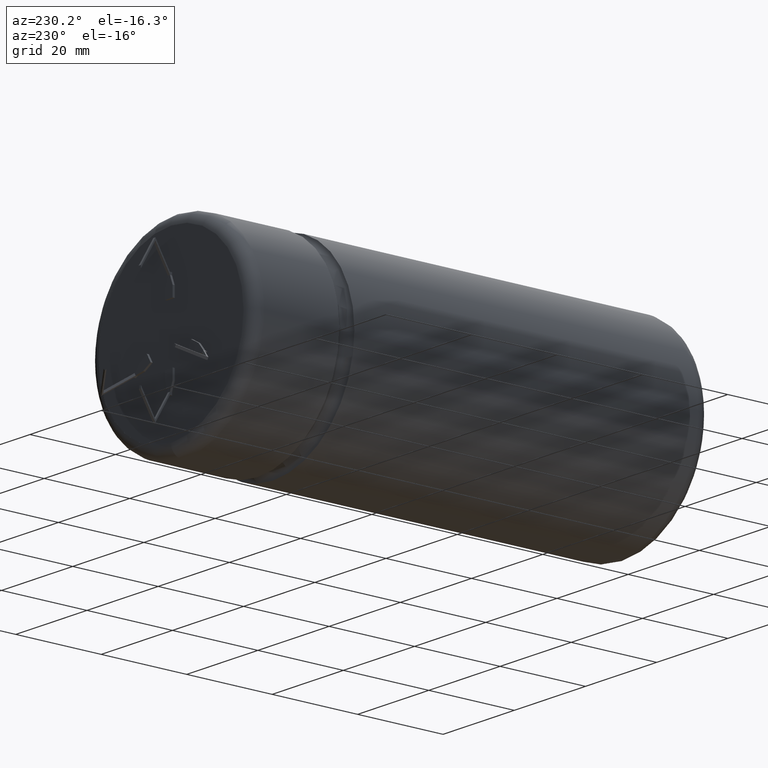
[diagram: clean part render]
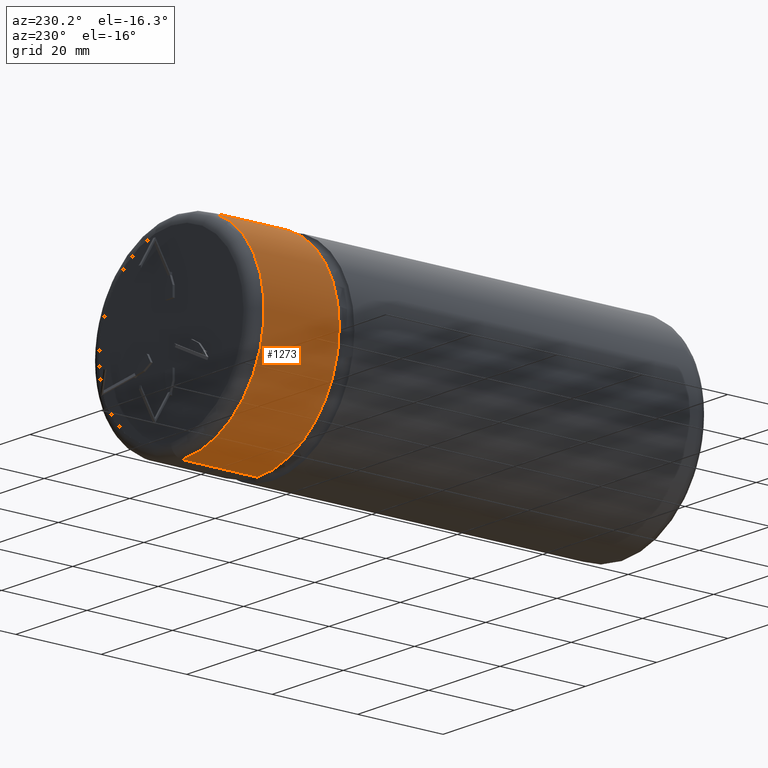
[diagram: same view with one face highlighted and labeled with its STEP entity id]
A machine part, auxiliary view. The second image highlights one B-rep face of the part: STEP entity #1273.
In plain terms, the highlighted cylindrical surface (partial cylindrical patch) has radius 23 mm, axis along (-0, -1, -0).
Its self-contained STEP definition (entity closure, byte-faithful):
#20 = CIRCLE ( 'NONE', #3860, 23.00000000000000000 ) ;
#42 = VERTEX_POINT ( 'NONE', #725 ) ;
#135 = ORIENTED_EDGE ( 'NONE', *, *, #2860, .T. ) ;
#435 = DIRECTION ( 'NONE',  ( 0.0000000000000000000, 0.0000000000000000000, -1.000000000000000000 ) ) ;
#725 = CARTESIAN_POINT ( 'NONE',  ( -23.00000000000000000, 86.76915999999999900, 0.0000000000000000000 ) ) ;
#748 = CARTESIAN_POINT ( 'NONE',  ( 0.0000000000000000000, 107.0000000000000000, 0.0000000000000000000 ) ) ;
#923 = DIRECTION ( 'NONE',  ( 0.0000000000000000000, 0.0000000000000000000, 1.000000000000000000 ) ) ;
#944 = FACE_OUTER_BOUND ( 'NONE', #4694, .T. ) ;
#958 = CARTESIAN_POINT ( 'NONE',  ( -8.735633565318470400E-017, 86.76915999999999900, 0.0000000000000000000 ) ) ;
#1056 = CARTESIAN_POINT ( 'NONE',  ( 0.0000000000000000000, 104.3503999999999900, -23.00000000000000000 ) ) ;
#1171 = AXIS2_PLACEMENT_3D ( 'NONE', #2462, #2805, #923 ) ;
#1273 = ADVANCED_FACE ( 'NONE', ( #944 ), #3565, .T. ) ;
#1521 = VERTEX_POINT ( 'NONE', #3475 ) ;
#1680 = LINE ( 'NONE', #2085, #2701 ) ;
#1888 = VERTEX_POINT ( 'NONE', #1056 ) ;
#1939 = CIRCLE ( 'NONE', #1171, 23.00000000000000000 ) ;
#2008 = VERTEX_POINT ( 'NONE', #2988 ) ;
#2025 = CIRCLE ( 'NONE', #3774, 23.00000000000000000 ) ;
#2085 = CARTESIAN_POINT ( 'NONE',  ( 0.0000000000000000000, 107.0000000000000000, -23.00000000000000000 ) ) ;
#2176 = ORIENTED_EDGE ( 'NONE', *, *, #3309, .T. ) ;
#2336 = EDGE_CURVE ( 'NONE', #1521, #2008, #2951, .T. ) ;
#2462 = CARTESIAN_POINT ( 'NONE',  ( 0.0000000000000000000, 104.3503999999999900, 0.0000000000000000000 ) ) ;
#2493 = VECTOR ( 'NONE', #2512, 1000.000000000000000 ) ;
#2512 = DIRECTION ( 'NONE',  ( -0.0000000000000000000, -1.000000000000000000, -0.0000000000000000000 ) ) ;
#2514 = ORIENTED_EDGE ( 'NONE', *, *, #4100, .T. ) ;
#2609 = DIRECTION ( 'NONE',  ( -0.0000000000000000000, -1.000000000000000000, -0.0000000000000000000 ) ) ;
#2701 = VECTOR ( 'NONE', #3551, 1000.000000000000000 ) ;
#2742 = AXIS2_PLACEMENT_3D ( 'NONE', #748, #2609, #435 ) ;
#2751 = CARTESIAN_POINT ( 'NONE',  ( 2.816687638038912400E-015, 107.0000000000000000, 23.00000000000000000 ) ) ;
#2805 = DIRECTION ( 'NONE',  ( -0.0000000000000000000, -1.000000000000000000, -0.0000000000000000000 ) ) ;
#2851 = CARTESIAN_POINT ( 'NONE',  ( 0.0000000000000000000, 86.76915999999999900, -23.00000000000000000 ) ) ;
#2860 = EDGE_CURVE ( 'NONE', #42, #2008, #2025, .T. ) ;
#2949 = EDGE_CURVE ( 'NONE', #1888, #3816, #1680, .T. ) ;
#2951 = LINE ( 'NONE', #2751, #2493 ) ;
#2988 = CARTESIAN_POINT ( 'NONE',  ( 2.816687638038912400E-015, 86.76915999999999900, 23.00000000000000000 ) ) ;
#3309 = EDGE_CURVE ( 'NONE', #3816, #42, #20, .T. ) ;
#3475 = CARTESIAN_POINT ( 'NONE',  ( 2.816687638038912400E-015, 104.3503999999999900, 23.00000000000000000 ) ) ;
#3551 = DIRECTION ( 'NONE',  ( -0.0000000000000000000, -1.000000000000000000, -0.0000000000000000000 ) ) ;
#3565 = CYLINDRICAL_SURFACE ( 'NONE', #2742, 23.00000000000000000 ) ;
#3596 = DIRECTION ( 'NONE',  ( -1.264299165142146600E-018, 1.000000000000000000, -0.0000000000000000000 ) ) ;
#3760 = DIRECTION ( 'NONE',  ( -1.000000000000000000, 0.0000000000000000000, 0.0000000000000000000 ) ) ;
#3774 = AXIS2_PLACEMENT_3D ( 'NONE', #958, #3596, #4684 ) ;
#3816 = VERTEX_POINT ( 'NONE', #2851 ) ;
#3860 = AXIS2_PLACEMENT_3D ( 'NONE', #4154, #4523, #3760 ) ;
#3923 = ORIENTED_EDGE ( 'NONE', *, *, #2336, .F. ) ;
#4100 = EDGE_CURVE ( 'NONE', #1521, #1888, #1939, .T. ) ;
#4154 = CARTESIAN_POINT ( 'NONE',  ( -8.735633565318470400E-017, 86.76915999999999900, 0.0000000000000000000 ) ) ;
#4523 = DIRECTION ( 'NONE',  ( -1.264299165142146600E-018, 1.000000000000000000, -0.0000000000000000000 ) ) ;
#4613 = ORIENTED_EDGE ( 'NONE', *, *, #2949, .T. ) ;
#4684 = DIRECTION ( 'NONE',  ( -1.000000000000000000, 0.0000000000000000000, 0.0000000000000000000 ) ) ;
#4694 = EDGE_LOOP ( 'NONE', ( #3923, #2514, #4613, #2176, #135 ) ) ;